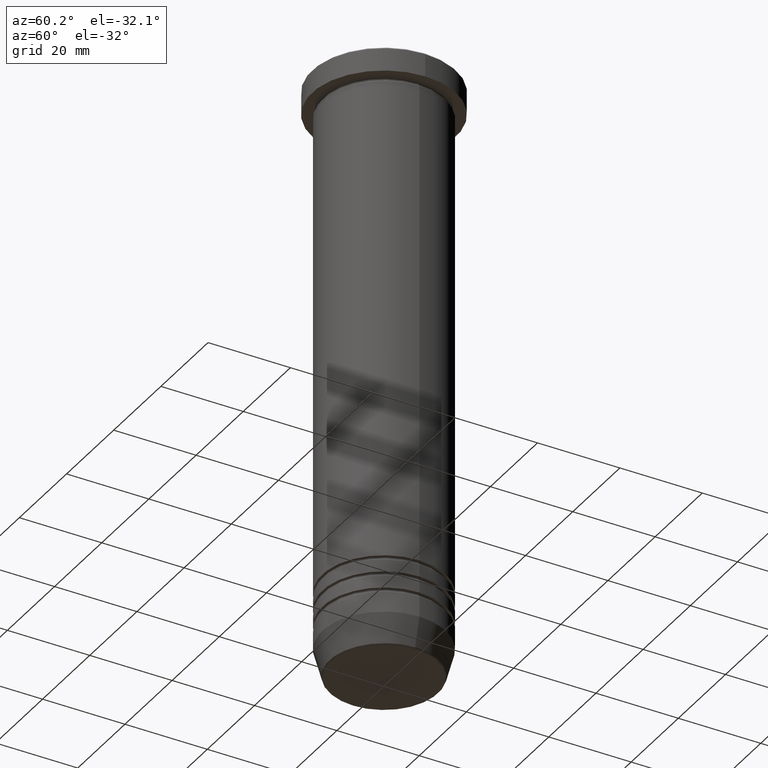
[diagram: clean part render]
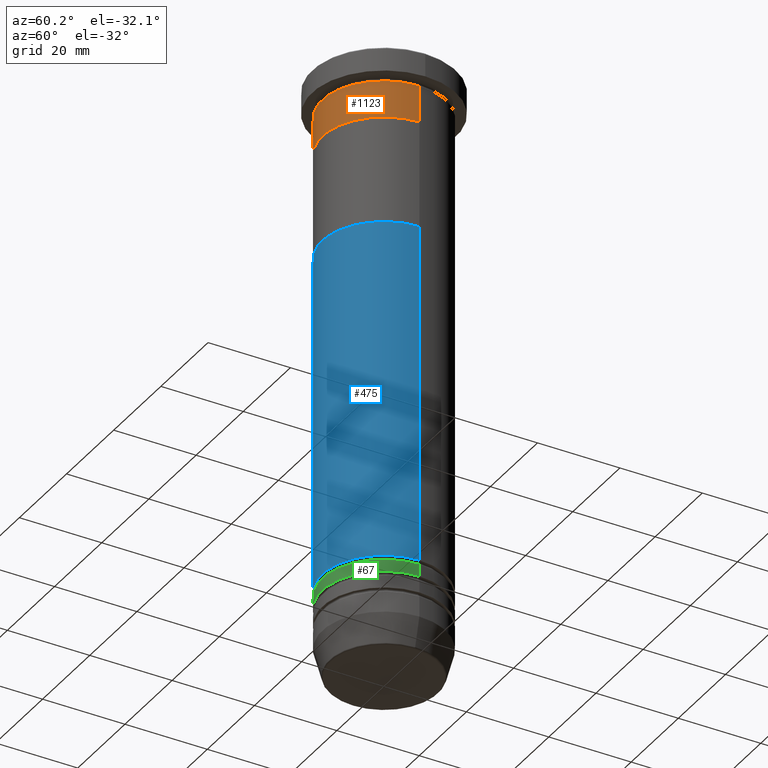
[diagram: same view with three faces highlighted in distinct colors, each labeled with its STEP entity id]
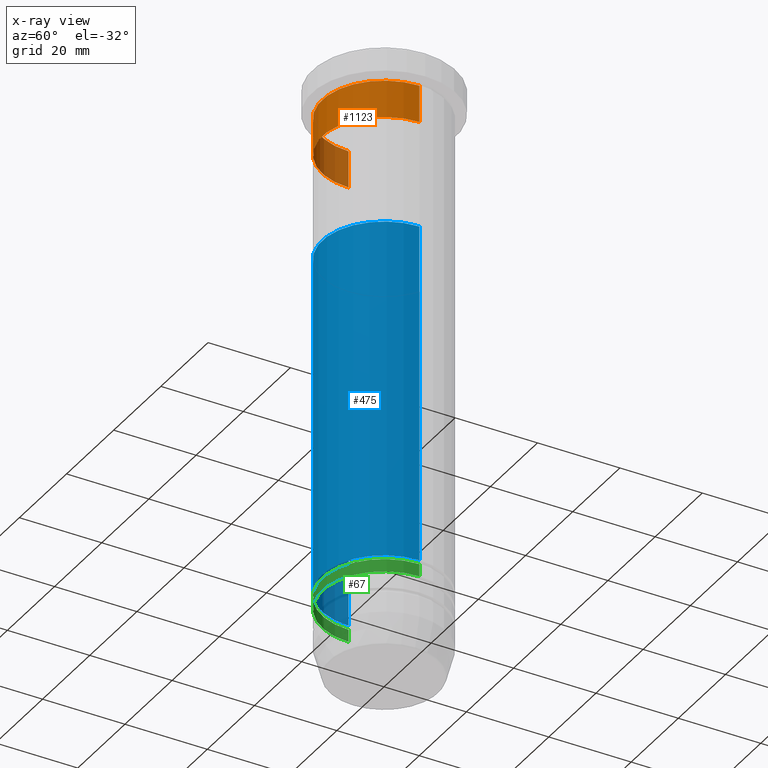
[diagram: x-ray of the same camera — body ghosted, the three highlighted faces saturated]
A machine part, auxiliary view with three faces highlighted in distinct colors.
The next image is the same camera in x-ray (body ghosted, the three faces saturated) — at least one of them is partly hidden behind the body in this view.
Their STEP definitions:

[orange] entity #1123 — the highlighted cylindrical surface (partial cylindrical patch) has radius 15 mm, axis along (-0, -0, 1).
#2 = EDGE_CURVE ( 'NONE', #1036, #1142, #694, .T. ) ;
#10 = FACE_OUTER_BOUND ( 'NONE', #21, .T. ) ;
#21 = EDGE_LOOP ( 'NONE', ( #407, #561, #218, #659 ) ) ;
#100 = CARTESIAN_POINT ( 'NONE',  ( 0.000000000000000000, 0.000000000000000000, -16.00000000000000000 ) ) ;
#105 = VERTEX_POINT ( 'NONE', #577 ) ;
#180 = LINE ( 'NONE', #889, #546 ) ;
#218 = ORIENTED_EDGE ( 'NONE', *, *, #1083, .T. ) ;
#220 = DIRECTION ( 'NONE',  ( 1.000000000000000000, 0.000000000000000000, 0.000000000000000000 ) ) ;
#241 = DIRECTION ( 'NONE',  ( -0.000000000000000000, -0.000000000000000000, 1.000000000000000000 ) ) ;
#298 = LINE ( 'NONE', #1013, #514 ) ;
#374 = CYLINDRICAL_SURFACE ( 'NONE', #603, 15.00000000000000000 ) ;
#387 = DIRECTION ( 'NONE',  ( -0.000000000000000000, -0.000000000000000000, 1.000000000000000000 ) ) ;
#407 = ORIENTED_EDGE ( 'NONE', *, *, #1001, .F. ) ;
#465 = CARTESIAN_POINT ( 'NONE',  ( 0.000000000000000000, 0.000000000000000000, -6.999999999999999112 ) ) ;
#466 = DIRECTION ( 'NONE',  ( 1.000000000000000000, 0.000000000000000000, 0.000000000000000000 ) ) ;
#477 = DIRECTION ( 'NONE',  ( -0.000000000000000000, -0.000000000000000000, 1.000000000000000000 ) ) ;
#498 = CIRCLE ( 'NONE', #989, 15.00000000000000000 ) ;
#514 = VECTOR ( 'NONE', #387, 1000.000000000000000 ) ;
#546 = VECTOR ( 'NONE', #717, 1000.000000000000000 ) ;
#554 = CARTESIAN_POINT ( 'NONE',  ( 0.000000000000000000, 0.000000000000000000, 0.000000000000000000 ) ) ;
#561 = ORIENTED_EDGE ( 'NONE', *, *, #673, .T. ) ;
#569 = DIRECTION ( 'NONE',  ( -0.000000000000000000, -0.000000000000000000, 1.000000000000000000 ) ) ;
#577 = CARTESIAN_POINT ( 'NONE',  ( 15.00000000000000000, 0.000000000000000000, -16.00000000000000000 ) ) ;
#603 = AXIS2_PLACEMENT_3D ( 'NONE', #554, #569, #920 ) ;
#611 = CARTESIAN_POINT ( 'NONE',  ( 15.00000000000000000, 0.000000000000000000, -6.999999999999999112 ) ) ;
#659 = ORIENTED_EDGE ( 'NONE', *, *, #2, .F. ) ;
#673 = EDGE_CURVE ( 'NONE', #813, #105, #498, .T. ) ;
#694 = CIRCLE ( 'NONE', #1048, 15.00000000000000000 ) ;
#717 = DIRECTION ( 'NONE',  ( -0.000000000000000000, -0.000000000000000000, 1.000000000000000000 ) ) ;
#813 = VERTEX_POINT ( 'NONE', #885 ) ;
#885 = CARTESIAN_POINT ( 'NONE',  ( -15.00000000000000000, 1.836970198721029589E-15, -16.00000000000000000 ) ) ;
#889 = CARTESIAN_POINT ( 'NONE',  ( -15.00000000000000000, 1.836970198721029589E-15, 0.000000000000000000 ) ) ;
#920 = DIRECTION ( 'NONE',  ( 1.000000000000000000, 0.000000000000000000, 0.000000000000000000 ) ) ;
#989 = AXIS2_PLACEMENT_3D ( 'NONE', #100, #477, #466 ) ;
#1001 = EDGE_CURVE ( 'NONE', #813, #1036, #180, .T. ) ;
#1013 = CARTESIAN_POINT ( 'NONE',  ( 15.00000000000000000, 0.000000000000000000, 0.000000000000000000 ) ) ;
#1036 = VERTEX_POINT ( 'NONE', #1054 ) ;
#1048 = AXIS2_PLACEMENT_3D ( 'NONE', #465, #241, #220 ) ;
#1054 = CARTESIAN_POINT ( 'NONE',  ( -15.00000000000000000, 1.836970198721029589E-15, -6.999999999999999112 ) ) ;
#1083 = EDGE_CURVE ( 'NONE', #105, #1142, #298, .T. ) ;
#1123 = ADVANCED_FACE ( 'NONE', ( #10 ), #374, .T. ) ;
#1142 = VERTEX_POINT ( 'NONE', #611 ) ;

[blue] entity #475 — the highlighted cylindrical surface (partial cylindrical patch) has radius 15 mm, axis along (-0, -0, 1).
#13 = LINE ( 'NONE', #132, #915 ) ;
#47 = DIRECTION ( 'NONE',  ( -0.000000000000000000, -0.000000000000000000, 1.000000000000000000 ) ) ;
#50 = VERTEX_POINT ( 'NONE', #572 ) ;
#83 = ORIENTED_EDGE ( 'NONE', *, *, #256, .F. ) ;
#132 = CARTESIAN_POINT ( 'NONE',  ( -14.99999999999999645, 1.836970198721029194E-15, 0.000000000000000000 ) ) ;
#142 = CARTESIAN_POINT ( 'NONE',  ( 14.99999999999999645, 0.000000000000000000, 0.000000000000000000 ) ) ;
#149 = DIRECTION ( 'NONE',  ( -0.000000000000000000, -0.000000000000000000, 1.000000000000000000 ) ) ;
#256 = EDGE_CURVE ( 'NONE', #722, #740, #13, .T. ) ;
#284 = CIRCLE ( 'NONE', #402, 14.99999999999999112 ) ;
#334 = FACE_OUTER_BOUND ( 'NONE', #645, .T. ) ;
#337 = CARTESIAN_POINT ( 'NONE',  ( 0.000000000000000000, 0.000000000000000000, 0.000000000000000000 ) ) ;
#370 = CARTESIAN_POINT ( 'NONE',  ( 0.000000000000000000, 0.000000000000000000, -41.99999999999999289 ) ) ;
#371 = ORIENTED_EDGE ( 'NONE', *, *, #777, .T. ) ;
#402 = AXIS2_PLACEMENT_3D ( 'NONE', #601, #149, #770 ) ;
#436 = EDGE_CURVE ( 'NONE', #722, #50, #284, .T. ) ;
#475 = ADVANCED_FACE ( 'NONE', ( #334 ), #686, .T. ) ;
#518 = CARTESIAN_POINT ( 'NONE',  ( 15.00000000000000000, 0.000000000000000000, -41.99999999999999289 ) ) ;
#572 = CARTESIAN_POINT ( 'NONE',  ( 14.99999999999999112, 0.000000000000000000, -124.9999999999999716 ) ) ;
#584 = CARTESIAN_POINT ( 'NONE',  ( -15.00000000000000000, 1.836970198721029589E-15, -41.99999999999999289 ) ) ;
#586 = CIRCLE ( 'NONE', #677, 15.00000000000000000 ) ;
#601 = CARTESIAN_POINT ( 'NONE',  ( 0.000000000000000000, 0.000000000000000000, -124.9999999999999716 ) ) ;
#645 = EDGE_LOOP ( 'NONE', ( #83, #978, #371, #958 ) ) ;
#660 = DIRECTION ( 'NONE',  ( -0.000000000000000000, -0.000000000000000000, 1.000000000000000000 ) ) ;
#677 = AXIS2_PLACEMENT_3D ( 'NONE', #370, #798, #721 ) ;
#686 = CYLINDRICAL_SURFACE ( 'NONE', #1028, 14.99999999999999645 ) ;
#689 = DIRECTION ( 'NONE',  ( -0.000000000000000000, -0.000000000000000000, 1.000000000000000000 ) ) ;
#706 = VERTEX_POINT ( 'NONE', #518 ) ;
#721 = DIRECTION ( 'NONE',  ( 1.000000000000000000, 0.000000000000000000, 0.000000000000000000 ) ) ;
#722 = VERTEX_POINT ( 'NONE', #769 ) ;
#740 = VERTEX_POINT ( 'NONE', #584 ) ;
#769 = CARTESIAN_POINT ( 'NONE',  ( -14.99999999999999112, 1.836970198721028800E-15, -124.9999999999999716 ) ) ;
#770 = DIRECTION ( 'NONE',  ( 1.000000000000000000, 0.000000000000000000, 0.000000000000000000 ) ) ;
#777 = EDGE_CURVE ( 'NONE', #50, #706, #938, .T. ) ;
#798 = DIRECTION ( 'NONE',  ( -0.000000000000000000, -0.000000000000000000, 1.000000000000000000 ) ) ;
#915 = VECTOR ( 'NONE', #660, 1000.000000000000000 ) ;
#938 = LINE ( 'NONE', #142, #1006 ) ;
#958 = ORIENTED_EDGE ( 'NONE', *, *, #1024, .F. ) ;
#978 = ORIENTED_EDGE ( 'NONE', *, *, #436, .T. ) ;
#1006 = VECTOR ( 'NONE', #47, 1000.000000000000000 ) ;
#1024 = EDGE_CURVE ( 'NONE', #740, #706, #586, .T. ) ;
#1028 = AXIS2_PLACEMENT_3D ( 'NONE', #337, #689, #1039 ) ;
#1039 = DIRECTION ( 'NONE',  ( 1.000000000000000000, 0.000000000000000000, 0.000000000000000000 ) ) ;

[green] entity #67 — the highlighted cylindrical surface (partial cylindrical patch) has radius 15 mm, axis along (-0, -0, 1).
#25 = EDGE_CURVE ( 'NONE', #735, #114, #760, .T. ) ;
#31 = CARTESIAN_POINT ( 'NONE',  ( -15.00000000000000000, 1.836970198721029589E-15, -125.9999999999999716 ) ) ;
#46 = DIRECTION ( 'NONE',  ( -0.000000000000000000, -0.000000000000000000, 1.000000000000000000 ) ) ;
#52 = CARTESIAN_POINT ( 'NONE',  ( -14.99999999999999645, 1.836970198721029194E-15, 0.000000000000000000 ) ) ;
#58 = VECTOR ( 'NONE', #130, 1000.000000000000000 ) ;
#64 = CARTESIAN_POINT ( 'NONE',  ( -14.99999999999999645, 1.836970198721029194E-15, -128.9999999999999716 ) ) ;
#67 = ADVANCED_FACE ( 'NONE', ( #309 ), #582, .T. ) ;
#114 = VERTEX_POINT ( 'NONE', #31 ) ;
#130 = DIRECTION ( 'NONE',  ( -0.000000000000000000, -0.000000000000000000, 1.000000000000000000 ) ) ;
#140 = DIRECTION ( 'NONE',  ( -0.000000000000000000, -0.000000000000000000, 1.000000000000000000 ) ) ;
#161 = CARTESIAN_POINT ( 'NONE',  ( 14.99999999999999822, 0.000000000000000000, -125.9999999999999716 ) ) ;
#222 = ORIENTED_EDGE ( 'NONE', *, *, #752, .F. ) ;
#243 = DIRECTION ( 'NONE',  ( 1.000000000000000000, 0.000000000000000000, 0.000000000000000000 ) ) ;
#251 = VECTOR ( 'NONE', #140, 1000.000000000000000 ) ;
#268 = AXIS2_PLACEMENT_3D ( 'NONE', #664, #46, #757 ) ;
#285 = AXIS2_PLACEMENT_3D ( 'NONE', #1029, #505, #783 ) ;
#309 = FACE_OUTER_BOUND ( 'NONE', #419, .T. ) ;
#329 = ORIENTED_EDGE ( 'NONE', *, *, #25, .F. ) ;
#347 = CARTESIAN_POINT ( 'NONE',  ( 0.000000000000000000, 0.000000000000000000, -128.9999999999999716 ) ) ;
#350 = CARTESIAN_POINT ( 'NONE',  ( 14.99999999999999645, 0.000000000000000000, -128.9999999999999716 ) ) ;
#375 = EDGE_CURVE ( 'NONE', #735, #997, #808, .T. ) ;
#419 = EDGE_LOOP ( 'NONE', ( #329, #902, #874, #222 ) ) ;
#432 = DIRECTION ( 'NONE',  ( -0.000000000000000000, -0.000000000000000000, 1.000000000000000000 ) ) ;
#469 = VERTEX_POINT ( 'NONE', #161 ) ;
#505 = DIRECTION ( 'NONE',  ( -0.000000000000000000, -0.000000000000000000, 1.000000000000000000 ) ) ;
#582 = CYLINDRICAL_SURFACE ( 'NONE', #268, 14.99999999999999645 ) ;
#646 = CIRCLE ( 'NONE', #285, 14.99999999999999822 ) ;
#664 = CARTESIAN_POINT ( 'NONE',  ( 0.000000000000000000, 0.000000000000000000, 0.000000000000000000 ) ) ;
#685 = LINE ( 'NONE', #928, #58 ) ;
#715 = EDGE_CURVE ( 'NONE', #997, #469, #685, .T. ) ;
#735 = VERTEX_POINT ( 'NONE', #64 ) ;
#752 = EDGE_CURVE ( 'NONE', #114, #469, #646, .T. ) ;
#757 = DIRECTION ( 'NONE',  ( 1.000000000000000000, 0.000000000000000000, 0.000000000000000000 ) ) ;
#760 = LINE ( 'NONE', #52, #251 ) ;
#783 = DIRECTION ( 'NONE',  ( 1.000000000000000000, 0.000000000000000000, 0.000000000000000000 ) ) ;
#808 = CIRCLE ( 'NONE', #936, 14.99999999999999645 ) ;
#874 = ORIENTED_EDGE ( 'NONE', *, *, #715, .T. ) ;
#902 = ORIENTED_EDGE ( 'NONE', *, *, #375, .T. ) ;
#928 = CARTESIAN_POINT ( 'NONE',  ( 14.99999999999999645, 0.000000000000000000, 0.000000000000000000 ) ) ;
#936 = AXIS2_PLACEMENT_3D ( 'NONE', #347, #432, #243 ) ;
#997 = VERTEX_POINT ( 'NONE', #350 ) ;
#1029 = CARTESIAN_POINT ( 'NONE',  ( 0.000000000000000000, 0.000000000000000000, -125.9999999999999716 ) ) ;